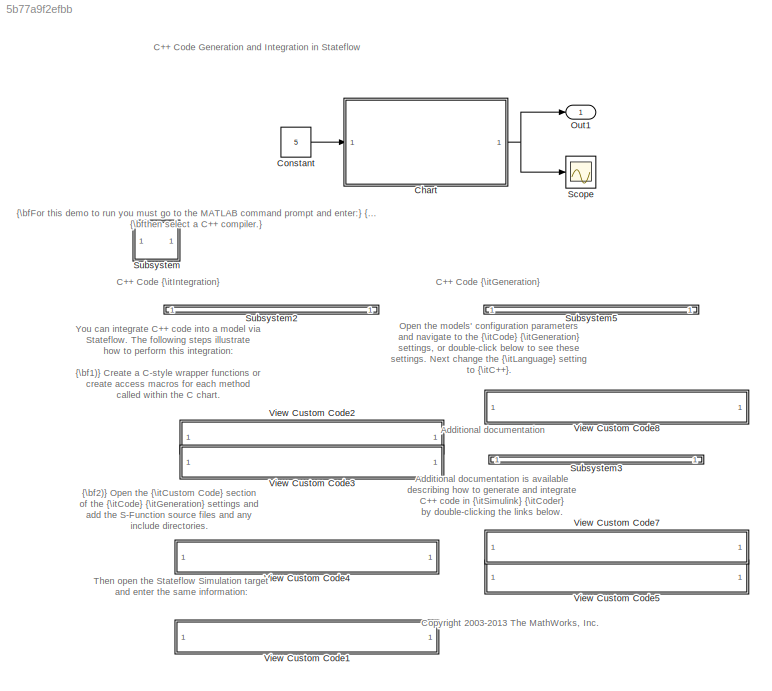
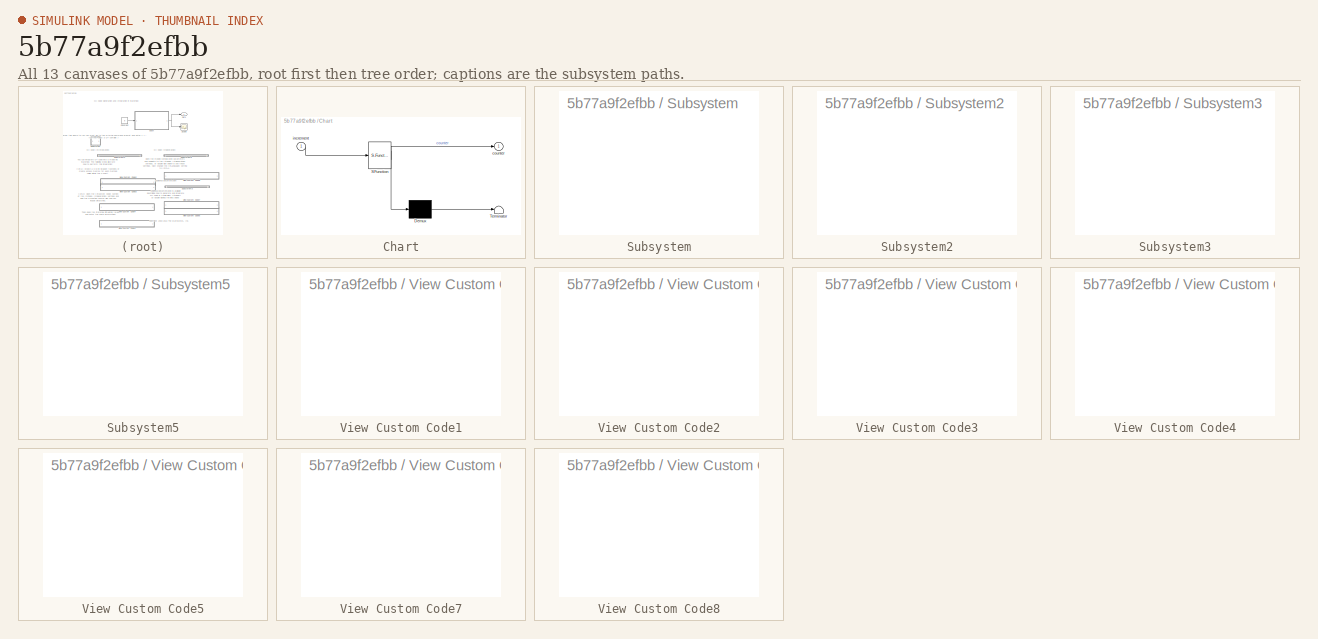
[diagram: thumbnail index - all 13 canvases of the model, root first then tree order]
MODEL slx_5b77a9f2efbb
KIND model
CONFIG AbsTol = auto
CONFIG EnableMultiTasking = on
CONFIG FixedStep = auto
CONFIG MaxStep = auto
CONFIG MinStep = auto
CONFIG RelTol = 1e-3
CONFIG SampleTimeConstraint = Unconstrained
CONFIG Solver = FixedStepDiscrete
CONFIG SolverName = FixedStepDiscrete
CONFIG StartTime = 0.0
CONFIG StopTime = inf
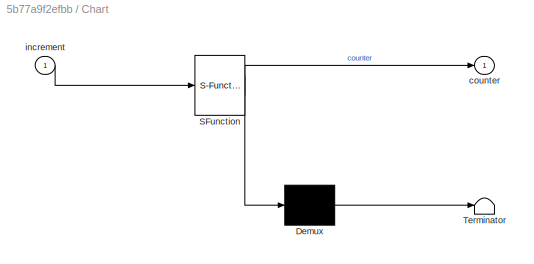
BLOCK [SubSystem] Chart
  ErrorFcn = Stateflow.Translate.translate
  PermitHierarchicalResolution = ExplicitOnly
  Ports = [1, 1]
  RequestExecContextInheritance = off
  SFBlockType = Chart
  TreatAsAtomicUnit = on
  Variant = off
BLOCK [Demux] Chart/ Demux 
  Outputs = 1
  Ports = [1, 1]
BLOCK [S-Function] Chart/ SFunction 
  EnableBusSupport = off
  FunctionName = sf_sfun
  PortCounts = [1 2]
  Ports = [1, 2]
  SFcnIsStateOwnerBlock = off
  SFunctionDeploymentMode = off
  Tag = Stateflow S-Function sf_cpp 1
BLOCK [Terminator] Chart/ Terminator 
BLOCK [Outport] Chart/counter
  IconDisplay = Port number
BLOCK [Inport] Chart/increment
  IconDisplay = Port number
BLOCK [Constant] Constant
  OutDataTypeStr = int32
  Value = 5
BLOCK [Outport] Out1
  IconDisplay = Port number
BLOCK [Scope] Scope
  NumInputPorts = 1
  Ports = [1]
  ScopeSpecificationString = Simulink.scopes.TimeScopeBlockCfg('CurrentConfiguration', extmgr.ConfigurationSet(extmgr.Configuration('Core','General UI',true),extmgr.Configuration('Core','Source UI',true),extmgr.Configuration('Sources','WiredSimulink',true,'DataLoggingSaveFormat','StructureWithTime','DataLoggingLimitDataPoints',true,'DataLoggingDecimation','1'),extmgr.Configuration('Visuals','Time Domain',true,'SerializedDispl...<+1722ch>
BLOCK [SubSystem] Subsystem
  Ports = []
  RequestExecContextInheritance = off
  Variant = off
BLOCK [SubSystem] Subsystem2
  Ports = []
  RequestExecContextInheritance = off
  Variant = off
BLOCK [SubSystem] Subsystem3
  Ports = []
  RequestExecContextInheritance = off
  Variant = off
BLOCK [SubSystem] Subsystem5
  Ports = []
  RequestExecContextInheritance = off
  Variant = off
BLOCK [SubSystem] View Custom Code1
  OpenFcn = configset.showParameterGroup(bdroot,{'Simulation Target'});
  Ports = []
  RequestExecContextInheritance = off
  Variant = off
BLOCK [SubSystem] View Custom Code2
  OpenFcn = filename=fullfile(matlabroot, 'toolbox', 'stateflow', 'sfdemos', 'custom_cpp_src', 'adder_cpp.cpp');\neval('edit(filename)')
  Ports = []
  RequestExecContextInheritance = off
  Variant = off
BLOCK [SubSystem] View Custom Code3
  OpenFcn = filename=fullfile(matlabroot, 'toolbox', 'stateflow', 'sfdemos', 'custom_cpp_src', 'adder_cpp.h');\neval('edit(filename)')
  Ports = []
  RequestExecContextInheritance = off
  Variant = off
BLOCK [SubSystem] View Custom Code4
  OpenFcn = configset.showParameterGroup(bdroot,{'Real-Time Workshop/Custom Code'});
  Ports = []
  RequestExecContextInheritance = off
  Variant = off
BLOCK [SubSystem] View Custom Code5
  OpenFcn = helpview([docroot '/toolbox/rtw/helptargets.map'], 'rtw_cpp_limitations')
  Ports = []
  RequestExecContextInheritance = off
  Variant = off
BLOCK [SubSystem] View Custom Code7
  OpenFcn = helpview([docroot '/toolbox/rtw/helptargets.map'], 'rtw_language_support')
  Ports = []
  RequestExecContextInheritance = off
  Variant = off
BLOCK [SubSystem] View Custom Code8
  OpenFcn = configset.showParameterGroup(bdroot,{'Real-Time Workshop'});
  Ports = []
  RequestExecContextInheritance = off
  Variant = off
ANNOTATION (root): Additional documentation
ANNOTATION (root): Additional documentation is available describing how to generate and integrate C++ code in {\itSimulink} {\itCoder} by double-clicking the links below.
ANNOTATION (root): C++ Code Generation and Integration in Stateflow
ANNOTATION (root): C++ Code {\itGeneration}
ANNOTATION (root): C++ Code {\itIntegration}
ANNOTATION (root): <copyright redacted>
ANNOTATION (root): Open the models' configuration parameters and navigate to the {\itCode} {\itGeneration} settings, or double-click below to see these settings. Next change the {\itLanguage} setting to {\itC++}.
ANNOTATION (root): Then open the Stateflow Simulation target and enter the same information:
ANNOTATION (root): You can integrate C++ code into a model via Stateflow. The following steps illustrate how to perform this integration:
ANNOTATION (root): {\bf1)} Create a C-style wrapper functions or create access macros for each method called within the C chart.
ANNOTATION (root): {\bf2)} Open the {\itCustom Code} section of the {\itCode} {\itGeneration} settings and add the S-Function source files and any include directories.
ANNOTATION (root): {\bfFor this demo to run you must go to the MATLAB command prompt and enter:} {\it>> mex -setup} {\bfthen select a C++ compiler.}
NET Chart:1 -> Out1:1, Scope:1
LINE Constant:1 -> Chart:1
note: NET lines group one-source signal fan-out (src -> all destinations, sorted); 1:1 wires keep LINE
CHART Chart states=2 transitions=3
  STATE_LABEL 'under_100\nduring: counter = adderOutput(adderVar, increment);'
  STATE_LABEL 'over_100\nduring: counter = adderOutput(adderVar, -increment);'
